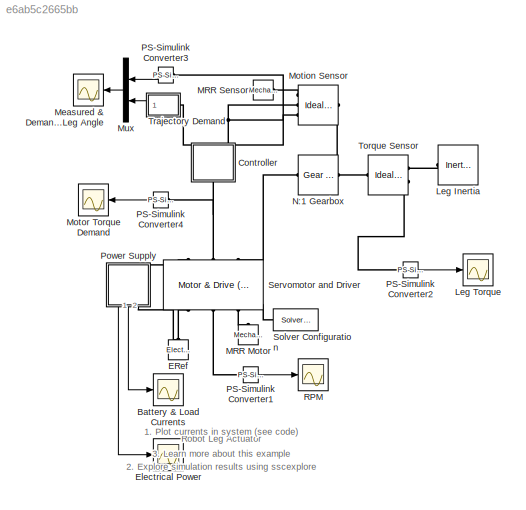
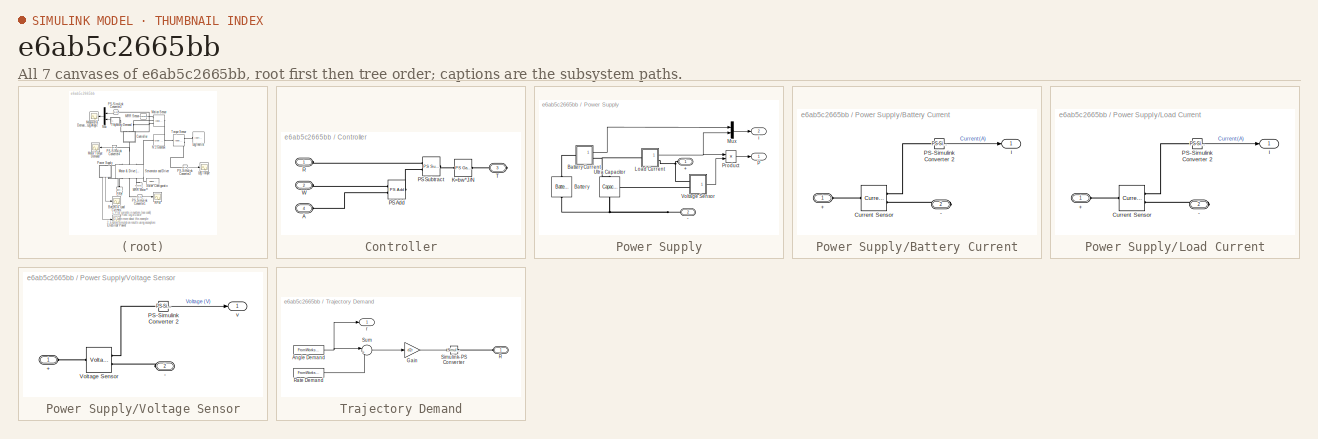
[diagram: thumbnail index - all 7 canvases of the model, root first then tree order]
MODEL slx_e6ab5c2665bb
KIND model
CONFIG AbsTol = auto
CONFIG EnableMultiTasking = on
CONFIG FixedStep = auto
CONFIG InitFcn = d2r = pi/180;\nif (~exist('T_cg'))\n  sm_robot_run_4legs_param_def_load(bdroot)\nend
CONFIG MaxStep = 1e-2
CONFIG MinStep = auto
CONFIG RelTol = 1e-3
CONFIG SampleTimeConstraint = Unconstrained
CONFIG SolverName = ode15s
CONFIG StartTime = 0.0
CONFIG StopTime = 6*T_cg/4
BLOCK [Scope] Battery & Load Currents
  Floating = off
  NumInputPorts = 1
  Ports = [1]
  ScopeSpecificationString = Simulink.scopes.TimeScopeBlockCfg('CurrentConfiguration', extmgr.ConfigurationSet(extmgr.Configuration('Core','General UI',true),extmgr.Configuration('Core','Source UI',true),extmgr.Configuration('Sources','WiredSimulink',true,'DataLogging',true,'DataLoggingVariableName','battery','DataLoggingSaveFormat','StructureWithTime','DataLoggingDecimation','1','DataLoggingDecimateData',true),extmgr.Configu...<+1634ch>
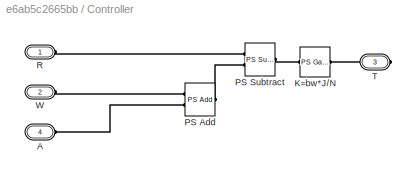
BLOCK [SubSystem] Controller
  NameLocation = left
  Ports = [0, 0, 0, 0, 0, 3, 1]
  RequestExecContextInheritance = off
BLOCK [PMIOPort] Controller/A
  Port = 4
  Side = Left
BLOCK [Reference] Controller/K=bw*J//N  REF=fl_ps_legacy_lib/Legacy Physical
Signals/Functions/PS Gain
  Ports = [0, 0, 0, 0, 0, 1, 1]
  SourceBlock = fl_ps_legacy_lib/Legacy Physical\nSignals/Functions/PS Gain
  SourceProductBaseCode = PW,SS,VE
  SourceType = PS Gain
BLOCK [Reference] Controller/PS Add  REF=fl_ps_legacy_lib/Legacy Physical
Signals/Functions/PS Add
  Ports = [0, 0, 0, 0, 0, 2, 1]
  SourceBlock = fl_ps_legacy_lib/Legacy Physical\nSignals/Functions/PS Add
  SourceProductBaseCode = PW,SS,VE
  SourceType = PS Add
BLOCK [Reference] Controller/PS Subtract  REF=fl_ps_legacy_lib/Legacy Physical
Signals/Functions/PS Subtract
  Ports = [0, 0, 0, 0, 0, 2, 1]
  SourceBlock = fl_ps_legacy_lib/Legacy Physical\nSignals/Functions/PS Subtract
  SourceProductBaseCode = PW,SS,VE
  SourceType = PS Subtract
BLOCK [PMIOPort] Controller/R
  Side = Left
BLOCK [PMIOPort] Controller/T
  Port = 3
  Side = Right
BLOCK [PMIOPort] Controller/W
  Port = 2
  Side = Left
BLOCK [Reference] ERef  REF=fl_lib/Electrical/Electrical Elements/Electrical Reference
  NameLocation = left
  Ports = [0, 0, 0, 0, 0, 1]
  SourceBlock = fl_lib/Electrical/Electrical Elements/Electrical Reference
  SourceProductBaseCode = PW,SS,VE
  SourceType = Electrical Reference
BLOCK [Scope] Electrical Power
  Floating = off
  NumInputPorts = 1
  Ports = [1]
  ScopeSpecificationString = Simulink.scopes.TimeScopeBlockCfg('CurrentConfiguration', extmgr.ConfigurationSet(extmgr.Configuration('Core','General UI',true),extmgr.Configuration('Core','Source UI',true),extmgr.Configuration('Sources','WiredSimulink',true,'DataLoggingVariableName','ScopeData4','DataLoggingSaveFormat','StructureWithTime','DataLoggingDecimation','1','DataLoggingDecimateData',true),extmgr.Configuration('Visuals'...<+1616ch>
BLOCK [Reference] Leg Inertia  REF=fl_lib/Mechanical/Rotational Elements/Inertia
  Ports = [0, 0, 0, 0, 0, 1]
  SourceBlock = fl_lib/Mechanical/Rotational Elements/Inertia
  SourceProductBaseCode = PW,SS,VE
  SourceType = Inertia
BLOCK [Scope] Leg Torque
  Floating = off
  NumInputPorts = 1
  Ports = [1]
  ScopeSpecificationString = Simulink.scopes.TimeScopeBlockCfg('CurrentConfiguration', extmgr.ConfigurationSet(extmgr.Configuration('Core','General UI',true),extmgr.Configuration('Core','Source UI',true),extmgr.Configuration('Sources','WiredSimulink',true,'DataLoggingVariableName','ScopeData2','DataLoggingSaveFormat','StructureWithTime','DataLoggingDecimation','1','DataLoggingDecimateData',true),extmgr.Configuration('Visuals'...<+1667ch>
BLOCK [Reference] MRR Motor  REF=fl_lib/Mechanical/Rotational Elements/Mechanical
Rotational Reference
  NameLocation = right
  Ports = [0, 0, 0, 0, 0, 1]
  SourceBlock = fl_lib/Mechanical/Rotational Elements/Mechanical\nRotational Reference
  SourceProductBaseCode = PW,SS,VE
  SourceType = Mechanical\nRotational Reference
BLOCK [Reference] MRR Sensor  REF=fl_lib/Mechanical/Rotational Elements/Mechanical
Rotational Reference
  Ports = [0, 0, 0, 0, 0, 1]
  SourceBlock = fl_lib/Mechanical/Rotational Elements/Mechanical\nRotational Reference
  SourceProductBaseCode = PW,SS,VE
  SourceType = Mechanical\nRotational Reference
BLOCK [Scope] Measured & Demanded Leg Angle
  Floating = off
  NumInputPorts = 1
  Ports = [1]
  ScopeSpecificationString = Simulink.scopes.TimeScopeBlockCfg('CurrentConfiguration', extmgr.ConfigurationSet(extmgr.Configuration('Core','General UI',true),extmgr.Configuration('Core','Source UI',true),extmgr.Configuration('Sources','WiredSimulink',true,'DataLoggingSaveFormat','StructureWithTime','DataLoggingDecimation','1','DataLoggingDecimateData',true),extmgr.Configuration('Visuals','Time Domain',true,'SerializedDisplays...<+1579ch>
BLOCK [Reference] Motion Sensor  REF=fl_lib/Mechanical/Mechanical Sensors/Ideal Rotational
Motion Sensor
  NameLocation = top
  Ports = [0, 0, 0, 0, 0, 1, 3]
  SourceBlock = fl_lib/Mechanical/Mechanical Sensors/Ideal Rotational\nMotion Sensor
  SourceProductBaseCode = PW,SS,VE
  SourceType = Ideal Rotational\nMotion Sensor
BLOCK [Scope] Motor Torque Demand
  Floating = off
  NumInputPorts = 1
  Ports = [1]
  ScopeSpecificationString = Simulink.scopes.TimeScopeBlockCfg('CurrentConfiguration', extmgr.ConfigurationSet(extmgr.Configuration('Core','General UI',true),extmgr.Configuration('Core','Source UI',true),extmgr.Configuration('Sources','WiredSimulink',true,'DataLoggingVariableName','ScopeData3','DataLoggingSaveFormat','StructureWithTime','DataLoggingDecimation','1','DataLoggingDecimateData',true),extmgr.Configuration('Visuals'...<+1671ch>
BLOCK [Mux] Mux
  DisplayOption = bar
  Inputs = 2
  NameLocation = top
  Ports = [2, 1]
BLOCK [Reference] N:1 Gearbox  REF=fl_lib/Mechanical/Mechanisms/Gear Box
  Ports = [0, 0, 0, 0, 0, 1, 1]
  SourceBlock = fl_lib/Mechanical/Mechanisms/Gear Box
  SourceProductBaseCode = PW,SS,VE
  SourceType = Gear Box
BLOCK [Reference] PS-Simulink Converter1  REF=nesl_utility/PS-Simulink
Converter
  Ports = [0, 1, 0, 0, 0, 1]
  SourceBlock = nesl_utility/PS-Simulink\nConverter
  SourceProductBaseCode = SS,PW,VE
  SourceType = PS-Simulink\nConverter
BLOCK [Reference] PS-Simulink Converter2  REF=nesl_utility/PS-Simulink
Converter
  Ports = [0, 1, 0, 0, 0, 1]
  SourceBlock = nesl_utility/PS-Simulink\nConverter
  SourceProductBaseCode = SS,PW,VE
  SourceType = PS-Simulink\nConverter
BLOCK [Reference] PS-Simulink Converter3  REF=nesl_utility/PS-Simulink
Converter
  NameLocation = top
  Ports = [0, 1, 0, 0, 0, 1]
  SourceBlock = nesl_utility/PS-Simulink\nConverter
  SourceProductBaseCode = SS,PW,VE
  SourceType = PS-Simulink\nConverter
BLOCK [Reference] PS-Simulink Converter4  REF=nesl_utility/PS-Simulink
Converter
  NameLocation = top
  Ports = [0, 1, 0, 0, 0, 1]
  SourceBlock = nesl_utility/PS-Simulink\nConverter
  SourceProductBaseCode = SS,PW,VE
  SourceType = PS-Simulink\nConverter
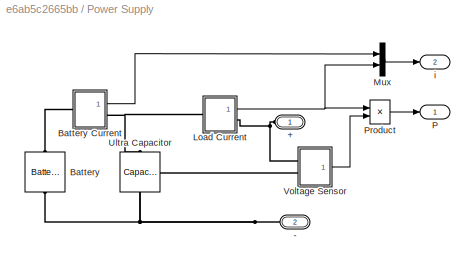
BLOCK [SubSystem] Power Supply
  NameLocation = left
  Ports = [0, 2, 0, 0, 0, 1, 1]
  RequestExecContextInheritance = off
BLOCK [PMIOPort] Power Supply/+
  Side = Left
BLOCK [PMIOPort] Power Supply/-
  Port = 2
  Side = Right
BLOCK [Reference] Power Supply/Battery  REF=ee_lib/Sources/Battery
  NameLocation = right
  Ports = [0, 0, 0, 0, 0, 1, 1]
  SourceBlock = ee_lib/Sources/Battery
  SourceProductBaseCode = PS
  SourceType = Battery
BLOCK [SubSystem] Power Supply/Battery Current
  Ports = [0, 1, 0, 0, 0, 1, 1]
  RequestExecContextInheritance = off
BLOCK [PMIOPort] Power Supply/Battery Current/+
  Side = Left
BLOCK [PMIOPort] Power Supply/Battery Current/-
  Port = 2
  Side = Right
BLOCK [Reference] Power Supply/Battery Current/Current Sensor  REF=fl_lib/Electrical/Electrical Sensors/Current Sensor
  Ports = [0, 0, 0, 0, 0, 1, 2]
  SourceBlock = fl_lib/Electrical/Electrical Sensors/Current Sensor
  SourceProductBaseCode = PW,SS,VE
  SourceType = Current Sensor
BLOCK [Reference] Power Supply/Battery Current/PS-Simulink Converter 2  REF=nesl_utility/PS-Simulink
Converter
  Ports = [0, 1, 0, 0, 0, 1]
  SourceBlock = nesl_utility/PS-Simulink\nConverter
  SourceProductBaseCode = SS,PW,VE
  SourceType = PS-Simulink\nConverter
BLOCK [Outport] Power Supply/Battery Current/i
  VectorParamsAs1DForOutWhenUnconnected = off
BLOCK [SubSystem] Power Supply/Load Current
  Ports = [0, 1, 0, 0, 0, 1, 1]
  RequestExecContextInheritance = off
BLOCK [PMIOPort] Power Supply/Load Current/+
  Side = Left
BLOCK [PMIOPort] Power Supply/Load Current/-
  Port = 2
  Side = Right
BLOCK [Reference] Power Supply/Load Current/Current Sensor  REF=fl_lib/Electrical/Electrical Sensors/Current Sensor
  Ports = [0, 0, 0, 0, 0, 1, 2]
  SourceBlock = fl_lib/Electrical/Electrical Sensors/Current Sensor
  SourceProductBaseCode = PW,SS,VE
  SourceType = Current Sensor
BLOCK [Reference] Power Supply/Load Current/PS-Simulink Converter 2  REF=nesl_utility/PS-Simulink
Converter
  Ports = [0, 1, 0, 0, 0, 1]
  SourceBlock = nesl_utility/PS-Simulink\nConverter
  SourceProductBaseCode = SS,PW,VE
  SourceType = PS-Simulink\nConverter
BLOCK [Outport] Power Supply/Load Current/i
  VectorParamsAs1DForOutWhenUnconnected = off
BLOCK [Mux] Power Supply/Mux
  DisplayOption = bar
  Inputs = 2
  Ports = [2, 1]
BLOCK [Outport] Power Supply/P
  VectorParamsAs1DForOutWhenUnconnected = off
BLOCK [Product] Power Supply/Product
  Ports = [2, 1]
  RndMeth = Zero
BLOCK [Reference] Power Supply/Ultra Capacitor  REF=fl_lib/Electrical/Electrical Elements/Capacitor
  NameLocation = right
  Ports = [0, 0, 0, 0, 0, 1, 1]
  SourceBlock = fl_lib/Electrical/Electrical Elements/Capacitor
  SourceProductBaseCode = PW,SS,VE
  SourceType = Capacitor
BLOCK [SubSystem] Power Supply/Voltage Sensor
  Ports = [0, 1, 0, 0, 0, 2]
  RequestExecContextInheritance = off
BLOCK [PMIOPort] Power Supply/Voltage Sensor/+
  Side = Left
BLOCK [PMIOPort] Power Supply/Voltage Sensor/-
  Port = 2
  Side = Left
BLOCK [Reference] Power Supply/Voltage Sensor/PS-Simulink Converter 2  REF=nesl_utility/PS-Simulink
Converter
  Ports = [0, 1, 0, 0, 0, 1]
  SourceBlock = nesl_utility/PS-Simulink\nConverter
  SourceProductBaseCode = SS,PW,VE
  SourceType = PS-Simulink\nConverter
BLOCK [Reference] Power Supply/Voltage Sensor/Voltage Sensor  REF=fl_lib/Electrical/Electrical Sensors/Voltage Sensor
  Ports = [0, 0, 0, 0, 0, 1, 2]
  SourceBlock = fl_lib/Electrical/Electrical Sensors/Voltage Sensor
  SourceProductBaseCode = PW,SS,VE
  SourceType = Voltage Sensor
BLOCK [Outport] Power Supply/Voltage Sensor/v
  VectorParamsAs1DForOutWhenUnconnected = off
BLOCK [Outport] Power Supply/i
  Port = 2
  VectorParamsAs1DForOutWhenUnconnected = off
BLOCK [Scope] RPM
  Floating = off
  NumInputPorts = 1
  Ports = [1]
  ScopeSpecificationString = Simulink.scopes.TimeScopeBlockCfg('CurrentConfiguration', extmgr.ConfigurationSet(extmgr.Configuration('Core','General UI',true),extmgr.Configuration('Core','Source UI',true),extmgr.Configuration('Sources','WiredSimulink',true,'DataLoggingVariableName','ScopeData1','DataLoggingSaveFormat','StructureWithTime','DataLoggingDecimation','1','DataLoggingDecimateData',true),extmgr.Configuration('Visuals'...<+1624ch>
BLOCK [Reference] Servomotor and Driver  REF=ee_lib/Electromechanical/Motor & Drive
(System Level)
  NameLocation = right
  Ports = [0, 0, 0, 0, 0, 3, 3]
  SourceBlock = ee_lib/Electromechanical/Motor & Drive\n(System Level)
  SourceProductBaseCode = PS
  SourceType = Motor & Drive\n(System Level)
BLOCK [Reference] Solver Configuration  REF=nesl_utility/Solver
Configuration
  Ports = [0, 0, 0, 0, 0, 0, 1]
  SourceBlock = nesl_utility/Solver\nConfiguration
  SourceProductBaseCode = SS,PW,VE
  SourceType = Solver\nConfiguration
BLOCK [Reference] Torque Sensor  REF=fl_lib/Mechanical/Mechanical Sensors/Ideal Torque Sensor
  Ports = [0, 0, 0, 0, 0, 1, 2]
  SourceBlock = fl_lib/Mechanical/Mechanical Sensors/Ideal Torque Sensor
  SourceProductBaseCode = PW,SS,VE
  SourceType = Ideal Torque Sensor
BLOCK [SubSystem] Trajectory Demand
  Ports = [0, 1, 0, 0, 0, 1]
  RequestExecContextInheritance = off
BLOCK [FromWorkspace] Trajectory Demand/Angle Demand
  OutputAfterFinalValue = Holding final value
  VariableName = [t_th u_th]
  ZeroCross = off
BLOCK [Gain] Trajectory Demand/Gain
  Gain = d2r
BLOCK [PMIOPort] Trajectory Demand/R
  Side = Left
BLOCK [FromWorkspace] Trajectory Demand/Rate Demand
  OutputAfterFinalValue = Holding final value
  VariableName = [t_w u_w]
  ZeroCross = off
BLOCK [Reference] Trajectory Demand/Simulink-PS Converter  REF=nesl_utility/Simulink-PS
Converter
  Ports = [1, 0, 0, 0, 0, 0, 1]
  SourceBlock = nesl_utility/Simulink-PS\nConverter
  SourceProductBaseCode = SS,PW,VE
  SourceType = Simulink-PS\nConverter
BLOCK [Sum] Trajectory Demand/Sum
  Inputs = |++
  Ports = [2, 1]
BLOCK [Outport] Trajectory Demand/r
  VectorParamsAs1DForOutWhenUnconnected = off
ANNOTATION (root): 1. Plot currents in system ( see code ) 2. Explore simulation results using sscexplore 3. Learn more about this example
ANNOTATION (root): Robot Leg Actuator
LINE Mux:1 -> Measured & Demanded Leg Angle:1
LINE PS-Simulink Converter1:1 -> RPM:1
LINE PS-Simulink Converter2:1 -> Leg Torque:1
LINE PS-Simulink Converter3:1 -> Mux:1
LINE PS-Simulink Converter4:1 -> Motor Torque Demand:1
LINE Power Supply/Battery Current/PS-Simulink Converter 2:1 -> Power Supply/Battery Current/i:1
LINE Power Supply/Battery Current:1 -> Power Supply/Mux:1
LINE Power Supply/Load Current/PS-Simulink Converter 2:1 -> Power Supply/Load Current/i:1
NET Power Supply/Load Current:1 -> Power Supply/Mux:2, Power Supply/Product:1
LINE Power Supply/Mux:1 -> Power Supply/i:1
LINE Power Supply/Product:1 -> Power Supply/P:1
LINE Power Supply/Voltage Sensor/PS-Simulink Converter 2:1 -> Power Supply/Voltage Sensor/v:1
LINE Power Supply/Voltage Sensor:1 -> Power Supply/Product:2
LINE Power Supply:1 -> Electrical Power:1
LINE Power Supply:2 -> Battery & Load Currents:1
NET Trajectory Demand/Angle Demand:1 -> Trajectory Demand/Sum:1, Trajectory Demand/r:1
LINE Trajectory Demand/Gain:1 -> Trajectory Demand/Simulink-PS Converter:1
LINE Trajectory Demand/Rate Demand:1 -> Trajectory Demand/Sum:2
LINE Trajectory Demand/Sum:1 -> Trajectory Demand/Gain:1
LINE Trajectory Demand:1 -> Mux:2
PLINE Controller/A:RConn1 -- Controller/PS Add:LConn2
PLINE Controller/K=bw*J//N:LConn1 -- Controller/PS Subtract:RConn1
PLINE Controller/K=bw*J//N:RConn1 -- Controller/T:RConn1
PLINE Controller/PS Add:LConn1 -- Controller/W:RConn1
PLINE Controller/PS Add:RConn1 -- Controller/PS Subtract:LConn2
PLINE Controller/PS Subtract:LConn1 -- Controller/R:RConn1
PLINE Controller:LConn1 -- Trajectory Demand:LConn1
PLINE Controller:LConn2 -- Motion Sensor:RConn2
PNET net1: Controller:LConn3 -- Motion Sensor:RConn3 -- PS-Simulink Converter3:LConn1
PNET net2: Controller:RConn1 -- PS-Simulink Converter4:LConn1 -- Servomotor and Driver:LConn2
PNET net3: ERef:LConn1 -- Power Supply:RConn1 -- Servomotor and Driver:RConn1
PLINE Leg Inertia:LConn1 -- Torque Sensor:RConn1
PNET net4: MRR Motor:LConn1 -- Servomotor and Driver:RConn3 -- Solver Configuration:RConn1
PLINE MRR Sensor:LConn1 -- Motion Sensor:RConn1
PNET net5: Motion Sensor:LConn1 -- N:1 Gearbox:RConn1 -- Torque Sensor:LConn1
PLINE N:1 Gearbox:LConn1 -- Servomotor and Driver:LConn3
PLINE PS-Simulink Converter1:LConn1 -- Servomotor and Driver:RConn2
PLINE PS-Simulink Converter2:LConn1 -- Torque Sensor:RConn2
PNET net6: Power Supply/+:RConn1 -- Power Supply/Load Current:RConn1 -- Power Supply/Voltage Sensor:LConn1
PNET net7: Power Supply/-:RConn1 -- Power Supply/Battery:RConn1 -- Power Supply/Ultra Capacitor:RConn1 -- Power Supply/Voltage Sensor:LConn2
PLINE Power Supply/Battery Current/+:RConn1 -- Power Supply/Battery Current/Current Sensor:LConn1
PLINE Power Supply/Battery Current/-:RConn1 -- Power Supply/Battery Current/Current Sensor:RConn2
PLINE Power Supply/Battery Current/Current Sensor:RConn1 -- Power Supply/Battery Current/PS-Simulink Converter 2:LConn1
PLINE Power Supply/Battery Current:LConn1 -- Power Supply/Battery:LConn1
PNET net8: Power Supply/Battery Current:RConn1 -- Power Supply/Load Current:LConn1 -- Power Supply/Ultra Capacitor:LConn1
PLINE Power Supply/Load Current/+:RConn1 -- Power Supply/Load Current/Current Sensor:LConn1
PLINE Power Supply/Load Current/-:RConn1 -- Power Supply/Load Current/Current Sensor:RConn2
PLINE Power Supply/Load Current/Current Sensor:RConn1 -- Power Supply/Load Current/PS-Simulink Converter 2:LConn1
PLINE Power Supply/Voltage Sensor/+:RConn1 -- Power Supply/Voltage Sensor/Voltage Sensor:LConn1
PLINE Power Supply/Voltage Sensor/-:RConn1 -- Power Supply/Voltage Sensor/Voltage Sensor:RConn2
PLINE Power Supply/Voltage Sensor/PS-Simulink Converter 2:LConn1 -- Power Supply/Voltage Sensor/Voltage Sensor:RConn1
PLINE Power Supply:LConn1 -- Servomotor and Driver:LConn1
PLINE Trajectory Demand/R:RConn1 -- Trajectory Demand/Simulink-PS Converter:RConn1
note: NET lines group one-source signal fan-out (src -> all destinations, sorted); 1:1 wires keep LINE; PNET lines group multi-terminal physical nets as a canonical sorted terminal list (undirected conserving connections); 2-terminal nets keep the pairwise PLINE form
